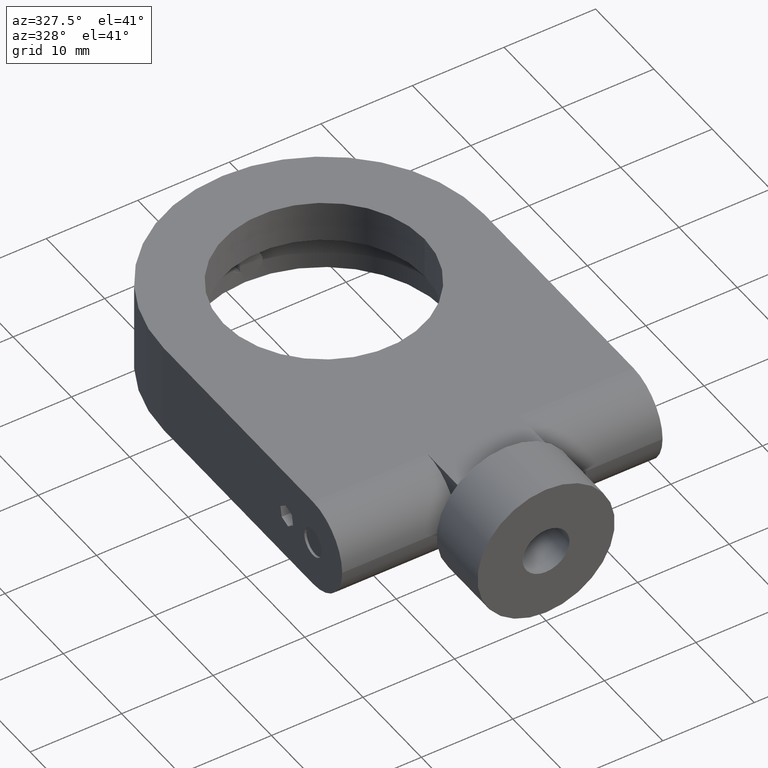
[diagram: clean part render]
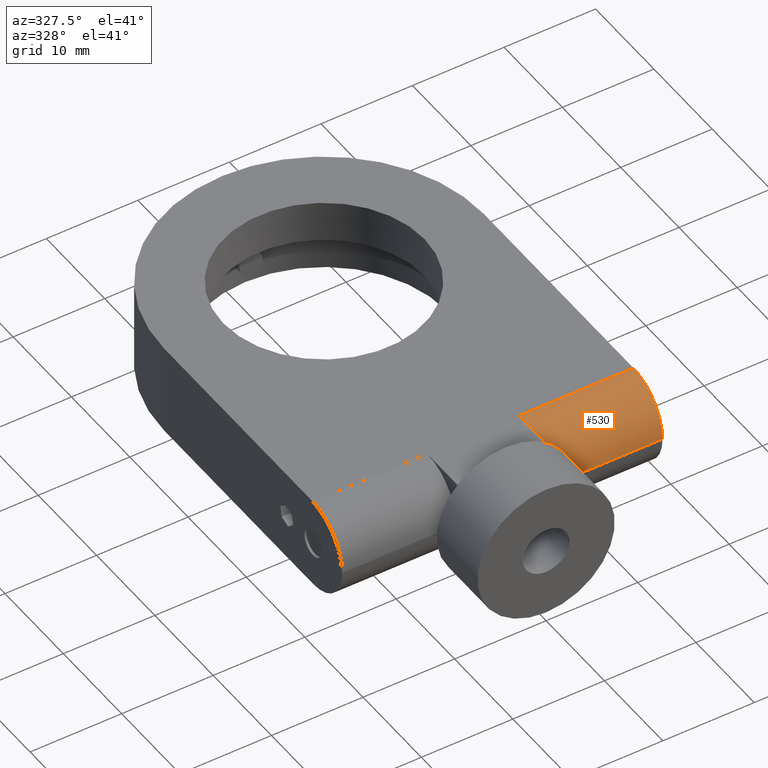
[diagram: same view with one face highlighted and labeled with its STEP entity id]
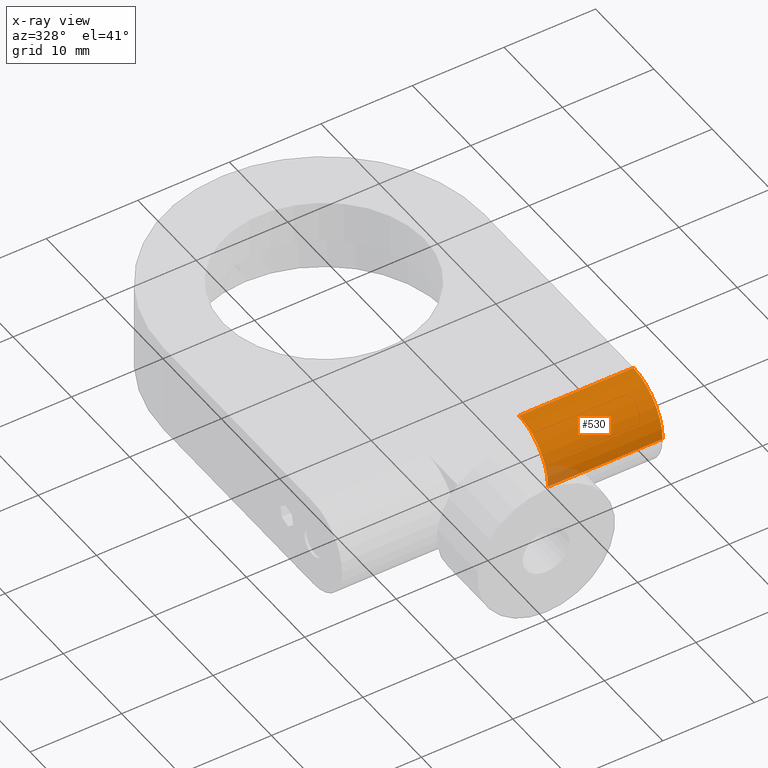
[diagram: x-ray of the same camera — body ghosted, the highlighted face saturated]
A machine part, auxiliary view. The second image highlights one B-rep face of the part: STEP entity #530.
The next image is the same camera in x-ray: the body ghosted, the highlighted face saturated — about 4% of this face is hidden behind the body in this view.
In plain terms, the highlighted cylindrical surface (partial cylindrical patch) has radius 5 mm, axis along (-1, -0, 0).
Its self-contained STEP definition (entity closure, byte-faithful):
#52 = VERTEX_POINT ( 'NONE', #2119 ) ;
#131 = VECTOR ( 'NONE', #1039, 1000.000000000000000 ) ;
#135 = ORIENTED_EDGE ( 'NONE', *, *, #703, .F. ) ;
#182 = EDGE_CURVE ( 'NONE', #52, #2675, #2569, .T. ) ;
#255 = VECTOR ( 'NONE', #660, 1000.000000000000000 ) ;
#282 = DIRECTION ( 'NONE',  ( 0.0000000000000000000, 1.000000000000000000, -8.881784197001250400E-016 ) ) ;
#334 = EDGE_LOOP ( 'NONE', ( #3799, #1894, #1669, #135 ) ) ;
#368 = DIRECTION ( 'NONE',  ( -1.000000000000000000, -1.625424873631782800E-016, 1.057139645054936500E-016 ) ) ;
#530 = ADVANCED_FACE ( 'NONE', ( #2768 ), #1067, .T. ) ;
#591 = CARTESIAN_POINT ( 'NONE',  ( 2.221474860763444300E-015, 12.49999999999999300, 5.000000000000002700 ) ) ;
#659 = DIRECTION ( 'NONE',  ( -1.000000000000000000, -1.625424873631782800E-016, 1.057139645054936500E-016 ) ) ;
#660 = DIRECTION ( 'NONE',  ( 1.000000000000000000, 1.625424873631782800E-016, -1.057139645054936500E-016 ) ) ;
#675 = AXIS2_PLACEMENT_3D ( 'NONE', #2441, #659, #2699 ) ;
#703 = EDGE_CURVE ( 'NONE', #2675, #1834, #1963, .T. ) ;
#1039 = DIRECTION ( 'NONE',  ( -1.000000000000000000, -1.625424873631782800E-016, 1.057139645054936500E-016 ) ) ;
#1067 = CYLINDRICAL_SURFACE ( 'NONE', #3736, 5.000000000000000000 ) ;
#1077 = AXIS2_PLACEMENT_3D ( 'NONE', #1747, #3528, #282 ) ;
#1338 = CARTESIAN_POINT ( 'NONE',  ( 5.000000000000002700, 7.499999999999992900, 1.734723475976807100E-015 ) ) ;
#1669 = ORIENTED_EDGE ( 'NONE', *, *, #1948, .F. ) ;
#1747 = CARTESIAN_POINT ( 'NONE',  ( 17.49999999999999600, 12.49999999999999600, 8.673617379884035500E-016 ) ) ;
#1834 = VERTEX_POINT ( 'NONE', #2978 ) ;
#1894 = ORIENTED_EDGE ( 'NONE', *, *, #3369, .F. ) ;
#1948 = EDGE_CURVE ( 'NONE', #1834, #2756, #2268, .T. ) ;
#1963 = CIRCLE ( 'NONE', #675, 5.000000000000000000 ) ;
#1980 = CARTESIAN_POINT ( 'NONE',  ( 17.49999999999999600, 12.49999999999999600, 5.000000000000000900 ) ) ;
#2119 = CARTESIAN_POINT ( 'NONE',  ( 17.49999999999999600, 7.499999999999996400, 8.673617379884035500E-016 ) ) ;
#2155 = CARTESIAN_POINT ( 'NONE',  ( 5.000000000000001800, 12.49999999999999300, 1.734723475976807100E-015 ) ) ;
#2172 = DIRECTION ( 'NONE',  ( 1.734723475976807100E-016, 0.0000000000000000000, 1.000000000000000000 ) ) ;
#2268 = LINE ( 'NONE', #591, #255 ) ;
#2441 = CARTESIAN_POINT ( 'NONE',  ( 5.000000000000001800, 12.49999999999999300, 1.734723475976807100E-015 ) ) ;
#2569 = LINE ( 'NONE', #1338, #131 ) ;
#2675 = VERTEX_POINT ( 'NONE', #3012 ) ;
#2699 = DIRECTION ( 'NONE',  ( -1.734723475976807100E-016, 0.0000000000000000000, -1.000000000000000000 ) ) ;
#2756 = VERTEX_POINT ( 'NONE', #1980 ) ;
#2768 = FACE_OUTER_BOUND ( 'NONE', #334, .T. ) ;
#2978 = CARTESIAN_POINT ( 'NONE',  ( 5.000000000000002700, 12.49999999999999300, 5.000000000000001800 ) ) ;
#3012 = CARTESIAN_POINT ( 'NONE',  ( 5.000000000000002700, 7.499999999999992900, 1.734723475976807100E-015 ) ) ;
#3050 = CIRCLE ( 'NONE', #1077, 5.000000000000000900 ) ;
#3369 = EDGE_CURVE ( 'NONE', #2756, #52, #3050, .T. ) ;
#3528 = DIRECTION ( 'NONE',  ( 1.000000000000000000, 4.916186801828893900E-017, -1.057139645054936500E-016 ) ) ;
#3736 = AXIS2_PLACEMENT_3D ( 'NONE', #2155, #368, #2172 ) ;
#3799 = ORIENTED_EDGE ( 'NONE', *, *, #182, .F. ) ;